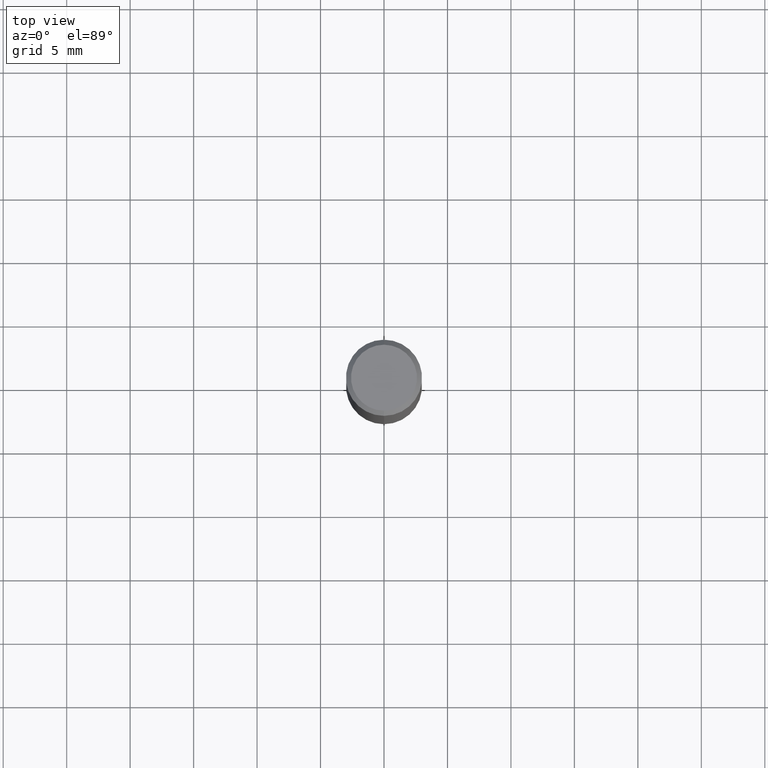
[diagram: clean part render]
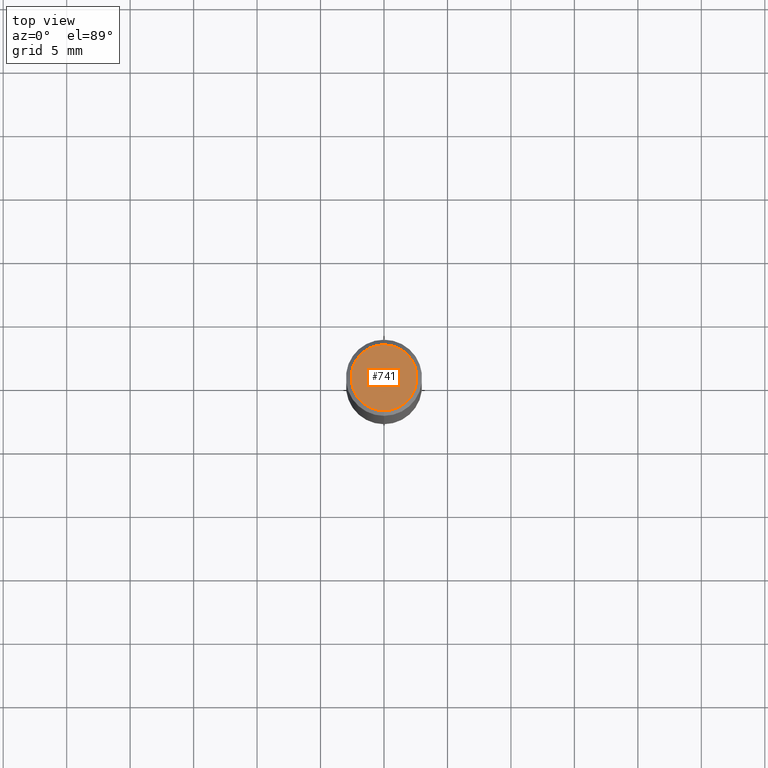
[diagram: same view with one face highlighted and labeled with its STEP entity id]
A machine part, top view. The second image highlights one B-rep face of the part: STEP entity #741.
In plain terms, the highlighted planar face has unit normal (-0, 0, 1).
Its self-contained STEP definition (entity closure, byte-faithful):
#467=EDGE_CURVE('',#485,#779,#1313,.T.);
#485=VERTEX_POINT('',#1332);
#653=EDGE_CURVE('',#779,#485,#1515,.T.);
#741=ADVANCED_FACE('',(#1614),#1615,.T.);
#779=VERTEX_POINT('',#1656);
#1313=CIRCLE('',#2293,2.6);
#1332=CARTESIAN_POINT('',(3.18397651993818E-016,-2.6,0.0));
#1515=CIRCLE('',#3785,2.6);
#1614=FACE_OUTER_BOUND('',#5004,.T.);
#1615=PLANE('',#5005);
#1656=CARTESIAN_POINT('',(0.0,2.6,0.0));
#2293=AXIS2_PLACEMENT_3D('',#9499,#9500,#9501);
#3785=AXIS2_PLACEMENT_3D('',#9692,#9693,#9694);
#5004=EDGE_LOOP('',(#9822,#9823));
#5005=AXIS2_PLACEMENT_3D('',#9824,#9825,#9826);
#9499=CARTESIAN_POINT('',(0.0,0.0,0.0));
#9500=DIRECTION('',(0.0,0.0,-1.0));
#9501=DIRECTION('',(0.0,1.0,0.0));
#9692=CARTESIAN_POINT('',(0.0,0.0,0.0));
#9693=DIRECTION('',(0.0,0.0,-1.0));
#9694=DIRECTION('',(0.0,1.0,0.0));
#9822=ORIENTED_EDGE('',*,*,#653,.F.);
#9823=ORIENTED_EDGE('',*,*,#467,.F.);
#9824=CARTESIAN_POINT('',(0.0,1.3,0.0));
#9825=DIRECTION('',(-0.0,0.0,1.0));
#9826=DIRECTION('',(0.0,-1.0,0.0));